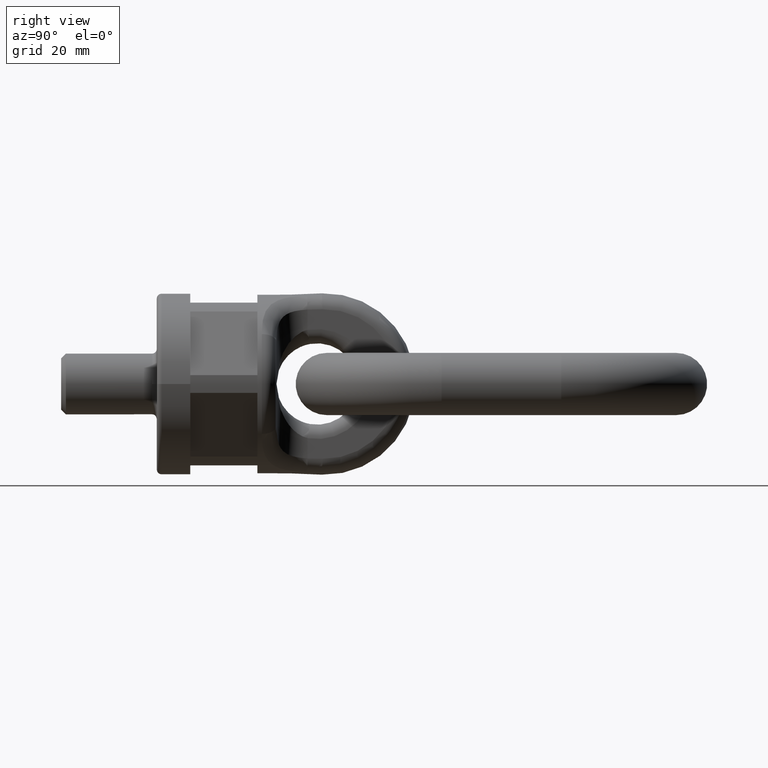
[diagram: clean part render]
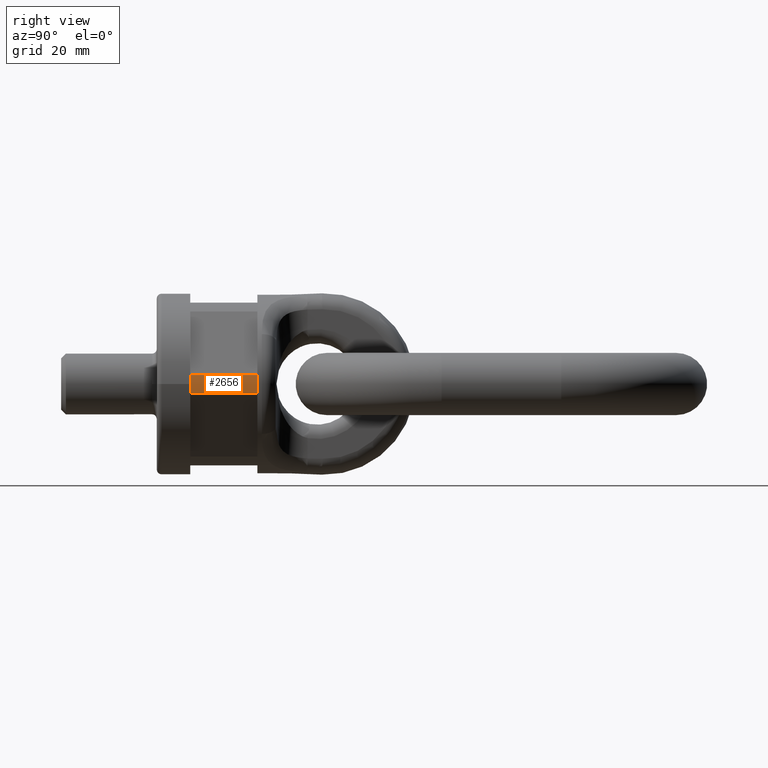
[diagram: same view with one face highlighted and labeled with its STEP entity id]
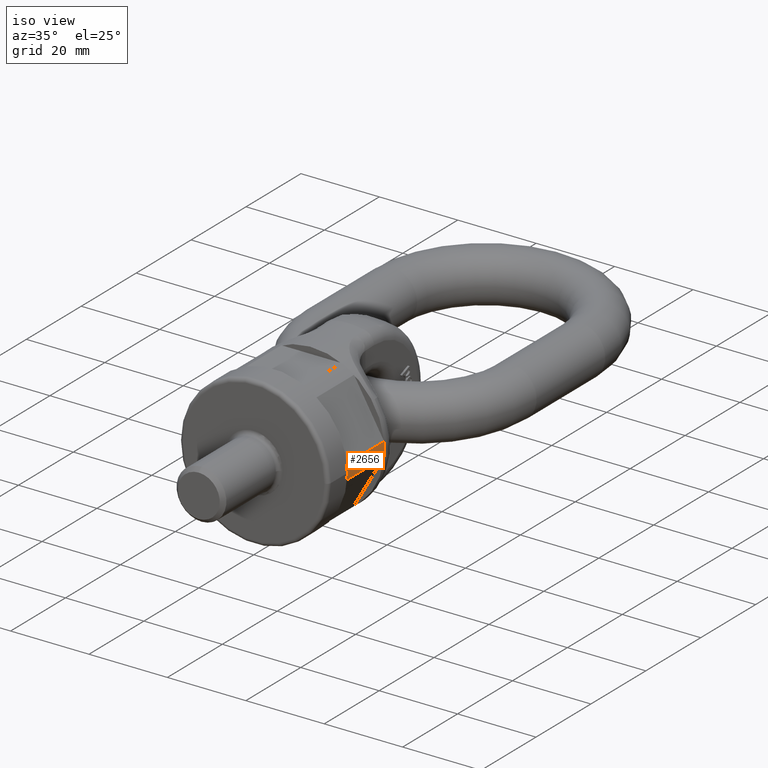
[diagram: same view with one face highlighted and labeled with its STEP entity id]
A machine part, right view. The second image highlights one B-rep face of the part: STEP entity #2656.
A second angle (iso view) of the same face is appended — the face is thin or edge-on in the first view.
In plain terms, the highlighted cylindrical surface (partial cylindrical patch) has radius 18.6484 mm, axis along (-0, 1, 0).
Its self-contained STEP definition (entity closure, byte-faithful):
#1814=FACE_OUTER_BOUND('',#3079,.T.);
#2022=CYLINDRICAL_SURFACE('',#5631,18.6484136948227);
#2056=LINE('',#6623,#2312);
#2060=LINE('',#6631,#2316);
#2312=VECTOR('',#5858,1.);
#2316=VECTOR('',#5864,1.);
#2656=ADVANCED_FACE('',(#1814),#2022,.T.);
#3079=EDGE_LOOP('',(#3408,#3409,#3410,#3411));
#3408=ORIENTED_EDGE('',*,*,#4955,.F.);
#3409=ORIENTED_EDGE('',*,*,#4966,.T.);
#3410=ORIENTED_EDGE('',*,*,#4979,.T.);
#3411=ORIENTED_EDGE('',*,*,#4970,.T.);
#4547=VERTEX_POINT('',#6579);
#4557=VERTEX_POINT('',#6599);
#4565=VERTEX_POINT('',#6624);
#4568=VERTEX_POINT('',#6632);
#4955=EDGE_CURVE('',#4557,#4547,#5545,.T.);
#4966=EDGE_CURVE('',#4557,#4565,#2056,.T.);
#4970=EDGE_CURVE('',#4568,#4547,#2060,.T.);
#4979=EDGE_CURVE('',#4565,#4568,#5551,.T.);
#5545=CIRCLE('',#5613,18.6484136948227);
#5551=CIRCLE('',#5627,18.6484136948227);
#5613=AXIS2_PLACEMENT_3D('',#6600,#5835,#5836);
#5627=AXIS2_PLACEMENT_3D('',#6645,#5881,#5882);
#5631=AXIS2_PLACEMENT_3D('',#6649,#5889,#5890);
#5835=DIRECTION('',(3.82702124733548E-17,-1.,0.));
#5836=DIRECTION('',(-1.,-4.65112878866048E-17,0.));
#5858=DIRECTION('',(-2.4492935982947E-17,1.,0.));
#5864=DIRECTION('',(2.4492935982947E-17,-1.,0.));
#5881=DIRECTION('',(0.,-1.,0.));
#5882=DIRECTION('',(0.,0.,-1.));
#5889=DIRECTION('',(-2.4492935982947E-17,1.,0.));
#5890=DIRECTION('',(-1.,-2.4492935982947E-17,0.));
#6579=CARTESIAN_POINT('',(18.5552941542323,7.,1.86128777548383));
#6599=CARTESIAN_POINT('',(18.5552941542323,7.,-1.86128777548382));
#6600=CARTESIAN_POINT('',(-1.71450551880629E-16,7.,0.));
#6623=CARTESIAN_POINT('',(18.5552941542323,9.38780506978953E-17,-1.86128777548382));
#6624=CARTESIAN_POINT('',(18.5552941542323,21.,-1.86128777548384));
#6631=CARTESIAN_POINT('',(18.5552941542323,9.38780506978953E-17,1.86128777548383));
#6632=CARTESIAN_POINT('',(18.5552941542323,21.,1.86128777548383));
#6645=CARTESIAN_POINT('',(-5.14351655641888E-16,21.,0.));
#6649=CARTESIAN_POINT('',(0.,0.,0.));